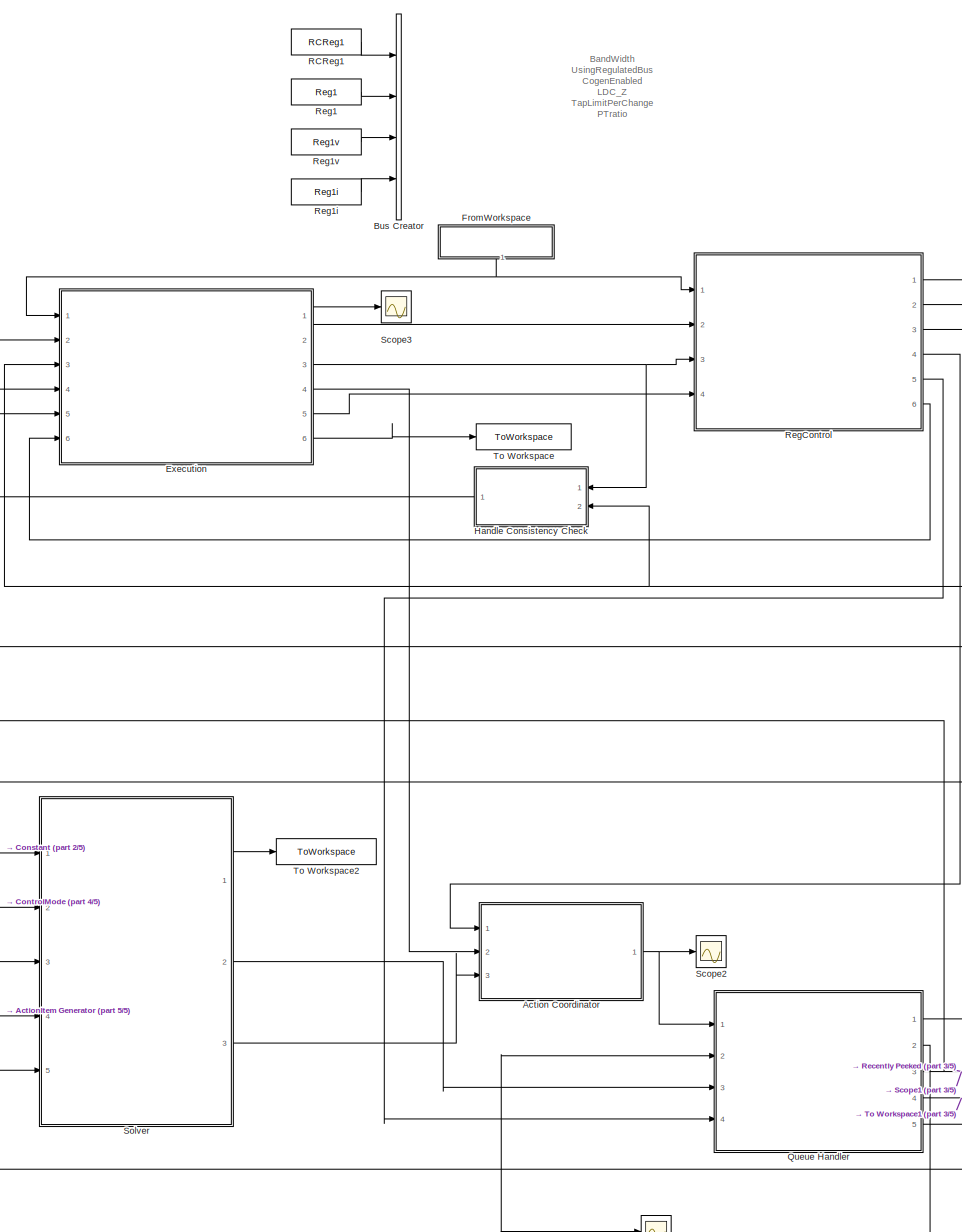
[diagram: root canvas - part 1/5, center side, full height]
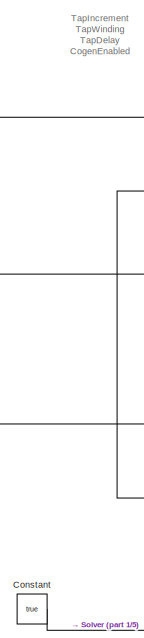
[diagram: root canvas - part 2/5, middle left region]
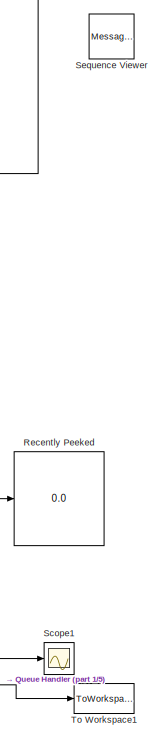
[diagram: root canvas - part 3/5, middle right region]
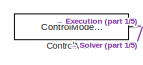
[diagram: root canvas - part 4/5, middle left region]
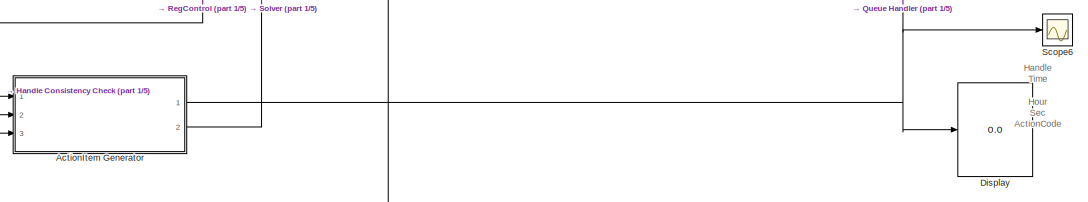
[diagram: root canvas - part 5/5, bottom center region]
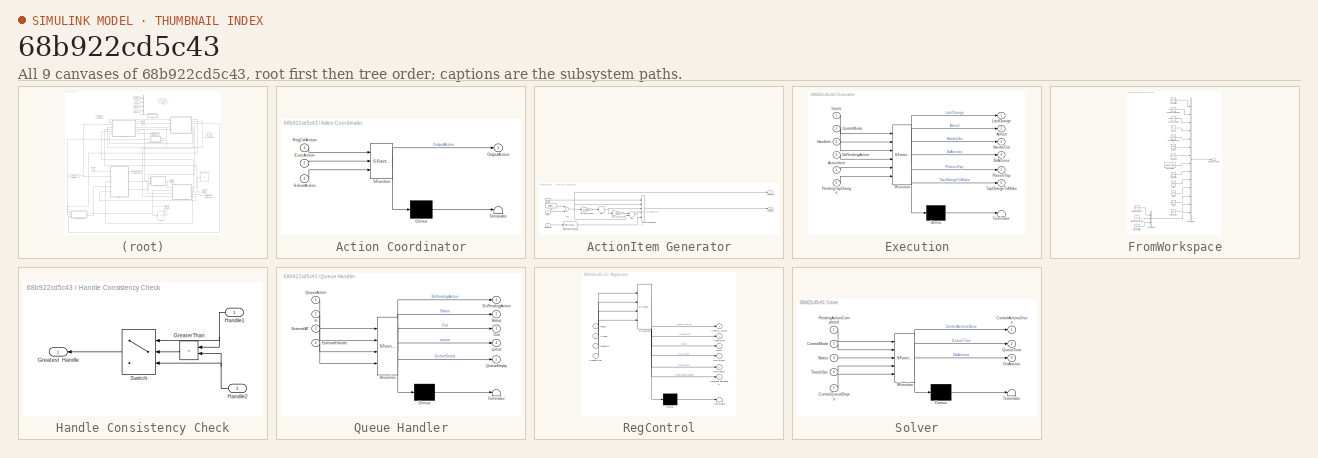
[diagram: thumbnail index - all 9 canvases of the model, root first then tree order]
MODEL slx_68b922cd5c43
KIND model
CONFIG AbsTol = auto
CONFIG EnableMultiTasking = off
CONFIG FixedStep = auto
CONFIG MaxStep = auto
CONFIG MinStep = auto
CONFIG RelTol = 1e-3
CONFIG SampleTimeConstraint = Unconstrained
CONFIG Solver = VariableStepAuto
CONFIG SolverName = VariableStepAuto
CONFIG StartTime = 0.0
CONFIG StopTime = 10.0
BLOCK [SubSystem] Action Coordinator
  ErrorFcn = Stateflow.Translate.translate
  PermitHierarchicalResolution = ExplicitOnly
  Ports = [3, 1]
  RequestExecContextInheritance = off
  SFBlockType = Chart
  TreatAsAtomicUnit = on
BLOCK [Demux] Action Coordinator/ Demux 
  Outputs = 1
  Ports = [1, 1]
BLOCK [S-Function] Action Coordinator/ SFunction 
  EnableBusSupport = off
  FunctionName = sf_sfun
  PortCounts = [3 2]
  Ports = [3, 2]
  SFcnIsStateOwnerBlock = off
  SFunctionDeploymentMode = off
  Tag = Stateflow S-Function regcontrol_model_before925 4
BLOCK [Terminator] Action Coordinator/ Terminator 
BLOCK [Inport] Action Coordinator/ExecAction
  IconDisplay = Port number
  Port = 2
BLOCK [Outport] Action Coordinator/OutputAction
  IconDisplay = Port number
BLOCK [Inport] Action Coordinator/RegCtrlAction
  IconDisplay = Port number
BLOCK [Inport] Action Coordinator/SolverAction
  IconDisplay = Port number
  Port = 3
BLOCK [SubSystem] ActionItem Generator
  Ports = [3, 2]
  RequestExecContextInheritance = off
BLOCK [Inport] ActionItem Generator/ActionCode
  IconDisplay = Port number
  Port = 2
BLOCK [DataTypeConversion] ActionItem Generator/ActionCodesToDouble
  OutDataTypeStr = double
  RndMeth = Floor
  SaturateOnIntegerOverflow = off
BLOCK [Outport] ActionItem Generator/ActionItem
  IconDisplay = Port number
BLOCK [Sum] ActionItem Generator/Add
  InputSameDT = off
  OutDataTypeStr = Inherit: Inherit via internal rule
  Ports = [2, 1]
  SaturateOnIntegerOverflow = off
BLOCK [Inport] ActionItem Generator/Delay
  IconDisplay = Port number
  Port = 3
BLOCK [Inport] ActionItem Generator/Handle
  IconDisplay = Port number
BLOCK [Rounding] ActionItem Generator/Hour
BLOCK [Gain] ActionItem Generator/HoursToSeconds
  Gain = 3600
  OutDataTypeStr = Inherit: Inherit via internal rule
  ParamDataTypeStr = Inherit: Inherit via internal rule
  SaturateOnIntegerOverflow = off
BLOCK [Sum] ActionItem Generator/Sec
  InputSameDT = off
  Inputs = -+
  OutDataTypeStr = Inherit: Inherit via internal rule
  Ports = [2, 1]
  SaturateOnIntegerOverflow = off
BLOCK [Gain] ActionItem Generator/SecondsToHours
  Gain = 1/3600
  OutDataTypeStr = Inherit: Inherit via internal rule
  ParamDataTypeStr = Inherit: Inherit via internal rule
  SaturateOnIntegerOverflow = off
BLOCK [DigitalClock] ActionItem Generator/Time
BLOCK [Outport] ActionItem Generator/TimeInSec
  IconDisplay = Port number
  Port = 2
BLOCK [Concatenate] ActionItem Generator/Vector Concatenate1
  NumInputs = 5
  Ports = [5, 1]
BLOCK [BusCreator] Bus Creator
  DisplayOption = bar
  InheritFromInputs = on
  Inputs = 4
  Ports = [4, 1]
BLOCK [Constant] Constant
  OutDataTypeStr = boolean
  Value = true
BLOCK [Constant] ControlMode
  OutDataTypeStr = Enum: ControlModes
  Value = ControlModes.STATIC
BLOCK [Display] Display
  Decimation = 1
  Ports = [1]
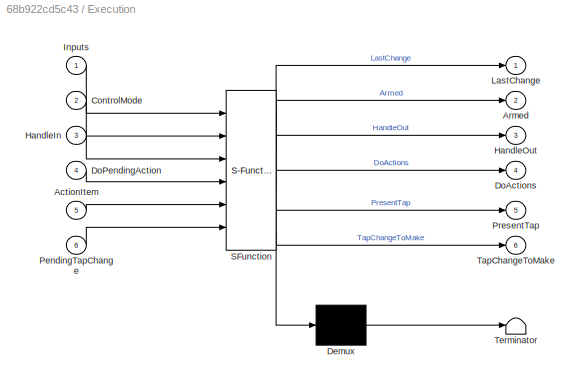
BLOCK [SubSystem] Execution
  ErrorFcn = Stateflow.Translate.translate
  PermitHierarchicalResolution = ExplicitOnly
  Ports = [6, 6]
  RequestExecContextInheritance = off
  SFBlockType = Chart
  TreatAsAtomicUnit = on
BLOCK [Demux] Execution/ Demux 
  Outputs = 1
  Ports = [1, 1]
BLOCK [S-Function] Execution/ SFunction 
  EnableBusSupport = on
  FunctionName = sf_sfun
  Parameters = 0,false
  PortCounts = [6 7]
  Ports = [6, 7]
  SFcnIsStateOwnerBlock = off
  SFunctionDeploymentMode = off
  Tag = Stateflow S-Function regcontrol_model_before925 1
BLOCK [Terminator] Execution/ Terminator 
BLOCK [Inport] Execution/ActionItem
  IconDisplay = Port number
  Port = 5
BLOCK [Outport] Execution/Armed
  IconDisplay = Port number
  Port = 2
BLOCK [Inport] Execution/ControlMode
  IconDisplay = Port number
  Port = 2
BLOCK [Outport] Execution/DoActions
  IconDisplay = Port number
  Port = 4
BLOCK [Inport] Execution/DoPendingAction
  IconDisplay = Port number
  Port = 4
BLOCK [Inport] Execution/HandleIn
  IconDisplay = Port number
  Port = 3
BLOCK [Outport] Execution/HandleOut
  IconDisplay = Port number
  Port = 3
BLOCK [Inport] Execution/Inputs
  IconDisplay = Port number
BLOCK [Outport] Execution/LastChange
  IconDisplay = Port number
BLOCK [Inport] Execution/PendingTapChange
  IconDisplay = Port number
  Port = 6
BLOCK [Outport] Execution/PresentTap
  IconDisplay = Port number
  Port = 5
BLOCK [Outport] Execution/TapChangeToMake
  IconDisplay = Port number
  Port = 6
BLOCK [SubSystem] FromWorkspace
  Ports = [0, 1]
  RequestExecContextInheritance = off
BLOCK [Constant] FromWorkspace/BandWidth
  Value = BandWidth
BLOCK [Constant] FromWorkspace/BaseVoltage
  Value = Vreg
BLOCK [BusCreator] FromWorkspace/Bus Creator
  DisplayOption = bar
  InheritFromInputs = on
  Inputs = 14
  OutDataTypeStr = Bus: InputsBus
  Ports = [14, 1]
BLOCK [BusCreator] FromWorkspace/Bus Creator1
  DisplayOption = bar
  InheritFromInputs = on
  Inputs = 3
  OutDataTypeStr = Bus: ControlledTransformer
  Ports = [3, 1]
BLOCK [Constant] FromWorkspace/CogenEnabled
  Value = CogenEnabled
BLOCK [Reference] FromWorkspace/FwdPower  REF=simulink/Sources/Waveform
Generator
  Ports = [0, 1]
  SourceBlock = simulink/Sources/Waveform\nGenerator
  SourceProductBaseCode = SL
  SourceProductName = Simulink
  SourceType = WaveformGenerator
BLOCK [Reference] FromWorkspace/ILDC  REF=simulink/Sources/Waveform
Generator
  Ports = [0, 1]
  SourceBlock = simulink/Sources/Waveform\nGenerator
  SourceProductBaseCode = SL
  SourceProductName = Simulink
  SourceType = WaveformGenerator
BLOCK [Constant] FromWorkspace/IsReversible
  Value = IsReversible
BLOCK [Constant] FromWorkspace/LDC_Z
  Value = LDC_Z
BLOCK [Constant] FromWorkspace/PTratio
  Value = PTratio
BLOCK [Constant] FromWorkspace/RevBand
  Value = RevBand
BLOCK [Constant] FromWorkspace/RevVreg
  Value = RevVreg
BLOCK [Constant] FromWorkspace/TapLimitPerChange
  Value = TapLimitPerChange
BLOCK [Constant] FromWorkspace/UsingRegulatedBus
  Value = UsingRegulatedBus
BLOCK [Constant] FromWorkspace/Vlimit
  Value = Vlimit
BLOCK [Constant] FromWorkspace/Vreg
  Value = Vreg
BLOCK [Constant] FromWorkspace/WindingConnections
  Value = Vreg
BLOCK [Reference] FromWorkspace/WindingVoltages  REF=simulink/Sources/Waveform
Generator
  Ports = [0, 1]
  SourceBlock = simulink/Sources/Waveform\nGenerator
  SourceProductBaseCode = SL
  SourceProductName = Simulink
  SourceType = WaveformGenerator
BLOCK [Outport] FromWorkspace/Workspace Data
  IconDisplay = Port number
BLOCK [SubSystem] Handle Consistency Check
  Ports = [2, 1]
  RequestExecContextInheritance = off
BLOCK [RelationalOperator] Handle Consistency Check/GreaterThan
  InputSameDT = off
  Operator = >
  Ports = [2, 1]
  RndMeth = Simplest
BLOCK [Outport] Handle Consistency Check/Greatest Handle
  IconDisplay = Port number
BLOCK [Inport] Handle Consistency Check/Handle1
  IconDisplay = Port number
BLOCK [Inport] Handle Consistency Check/Handle2
  IconDisplay = Port number
  Port = 2
BLOCK [Switch] Handle Consistency Check/Switch
  Criteria = u2 ~= 0
  InputSameDT = off
  SaturateOnIntegerOverflow = off
BLOCK [SubSystem] Queue Handler
  ErrorFcn = Stateflow.Translate.translate
  PermitHierarchicalResolution = ExplicitOnly
  Ports = [4, 5]
  RequestExecContextInheritance = off
  SFBlockType = Chart
  TreatAsAtomicUnit = on
BLOCK [Demux] Queue Handler/ Demux 
  Outputs = 1
  Ports = [1, 1]
BLOCK [S-Function] Queue Handler/ SFunction 
  EnableBusSupport = on
  FunctionName = sf_sfun
  InputPortMessageModes = m,n,n,n
  OutputPortMessageModes = n,m,n,n,n,n
  Parameters = 0,1,2,3,4,5,false,false;,true
  PortCounts = [4 6]
  Ports = [4, 6]
  SFcnIsStateOwnerBlock = off
  SFunctionDeploymentMode = off
  Tag = Stateflow S-Function regcontrol_model_before925 5
BLOCK [Terminator] Queue Handler/ Terminator 
BLOCK [Outport] Queue Handler/DoPendingAction
  IconDisplay = Port number
BLOCK [Inport] Queue Handler/ExternalAT
  IconDisplay = Port number
  Port = 3
BLOCK [Inport] Queue Handler/ExternalHandle
  IconDisplay = Port number
  Port = 4
BLOCK [Inport] Queue Handler/In
  IconDisplay = Port number
  Port = 2
BLOCK [Outport] Queue Handler/Out
  IconDisplay = Port number
  Port = 3
BLOCK [Inport] Queue Handler/QueueAction
  IconDisplay = Port number
BLOCK [Outport] Queue Handler/QueueEmpty
  IconDisplay = Port number
  Port = 5
BLOCK [Outport] Queue Handler/Status
  IconDisplay = Port number
  Port = 2
BLOCK [Outport] Queue Handler/queue
  IconDisplay = Port number
  Port = 4
BLOCK [Constant] RCReg1
  Value = RCReg1
BLOCK [Display] Recently Peeked
  Decimation = 1
  Ports = [1]
BLOCK [Constant] Reg1
  Value = Reg1
BLOCK [Constant] Reg1i
  Value = Reg1i
BLOCK [Constant] Reg1v
  Value = Reg1v
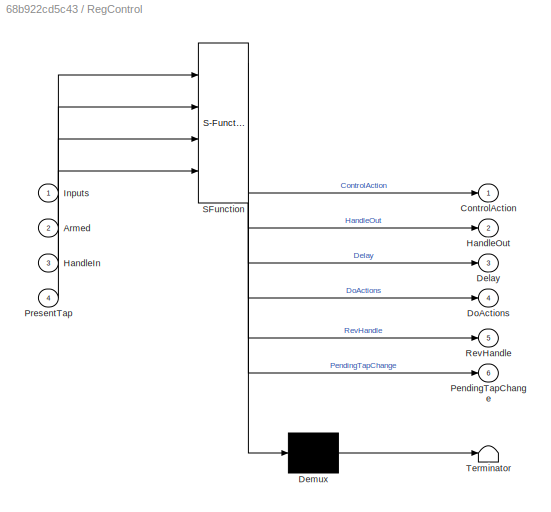
BLOCK [SubSystem] RegControl
  ErrorFcn = Stateflow.Translate.translate
  PermitHierarchicalResolution = ExplicitOnly
  Ports = [4, 6]
  RequestExecContextInheritance = off
  SFBlockType = Chart
  ShowPortLabels = SignalName
  TreatAsAtomicUnit = on
BLOCK [Demux] RegControl/ Demux 
  Outputs = 1
  Ports = [1, 1]
BLOCK [S-Function] RegControl/ SFunction 
  EnableBusSupport = on
  FunctionName = sf_sfun
  Parameters = 0,1,1.0e-12,120,16,3,60,BaseVoltage,false
  PortCounts = [4 7]
  Ports = [4, 7]
  SFcnIsStateOwnerBlock = off
  SFunctionDeploymentMode = off
  Tag = Stateflow S-Function regcontrol_model_before925 3
BLOCK [Terminator] RegControl/ Terminator 
BLOCK [Inport] RegControl/Armed
  IconDisplay = Port number
  Port = 2
BLOCK [Outport] RegControl/ControlAction
  IconDisplay = Port number
BLOCK [Outport] RegControl/Delay
  IconDisplay = Port number
  Port = 3
BLOCK [Outport] RegControl/DoActions
  IconDisplay = Port number
  Port = 4
BLOCK [Inport] RegControl/HandleIn
  IconDisplay = Port number
  Port = 3
BLOCK [Outport] RegControl/HandleOut
  IconDisplay = Port number
  Port = 2
BLOCK [Inport] RegControl/Inputs
  IconDisplay = Port number
BLOCK [Outport] RegControl/PendingTapChange
  IconDisplay = Port number
  Port = 6
BLOCK [Inport] RegControl/PresentTap
  IconDisplay = Port number
  Port = 4
BLOCK [Outport] RegControl/RevHandle
  IconDisplay = Port number
  Port = 5
BLOCK [Scope] Scope1
  Floating = off
  NumInputPorts = 1
  Ports = [1]
  ScopeSpecificationString = Simulink.scopes.TimeScopeBlockCfg('CurrentConfiguration', extmgr.ConfigurationSet(extmgr.Configuration('Core','General UI',true),extmgr.Configuration('Core','Source UI',true),extmgr.Configuration('Sources','WiredSimulink',true,'DataLoggingVariableName','ScopeData1'),extmgr.Configuration('Visuals','Time Domain',true,'SerializedDisplays',{struct('MinYLimReal','-0.5','MaxYLimReal','4.5','YLabelReal',...<+1470ch>
BLOCK [Scope] Scope2
  Floating = off
  NumInputPorts = 1
  Ports = [1]
  ScopeSpecificationString = Simulink.scopes.TimeScopeBlockCfg('CurrentConfiguration', extmgr.ConfigurationSet(extmgr.Configuration('Core','General UI',true),extmgr.Configuration('Core','Source UI',true),extmgr.Configuration('Sources','WiredSimulink',true,'DataLoggingVariableName','ScopeData2'),extmgr.Configuration('Visuals','Time Domain',true,'SerializedDisplays',{struct('MinYLimReal','-0.75','MaxYLimReal','6.75','YLabelReal...<+1414ch>
BLOCK [Scope] Scope3
  Floating = off
  NumInputPorts = 1
  Ports = [1]
  ScopeSpecificationString = Simulink.scopes.TimeScopeBlockCfg('CurrentConfiguration', extmgr.ConfigurationSet(extmgr.Configuration('Core','General UI',true),extmgr.Configuration('Core','Source UI',true),extmgr.Configuration('Sources','WiredSimulink',true,'DataLoggingVariableName','ScopeData1'),extmgr.Configuration('Visuals','Time Domain',true,'SerializedDisplays',{struct('MinYLimReal','-0.75','MaxYLimReal','6.75','YLabelReal...<+1414ch>
BLOCK [Scope] Scope6
  Floating = off
  NumInputPorts = 1
  Ports = [1]
  ScopeSpecificationString = Simulink.scopes.TimeScopeBlockCfg('CurrentConfiguration', extmgr.ConfigurationSet(extmgr.Configuration('Core','General UI',true),extmgr.Configuration('Core','Source UI',true),extmgr.Configuration('Sources','WiredSimulink',true,'DataLoggingVariableName','ScopeData3'),extmgr.Configuration('Visuals','Time Domain',true,'SerializedDisplays',{struct('MinYLimReal','-1.25','MaxYLimReal','11.25','YLabelRea...<+1418ch>
BLOCK [MessageViewer] Sequence Viewer
BLOCK [SubSystem] Solver
  ErrorFcn = Stateflow.Translate.translate
  PermitHierarchicalResolution = ExplicitOnly
  Ports = [5, 3]
  RequestExecContextInheritance = off
  SFBlockType = Chart
  TreatAsAtomicUnit = on
BLOCK [Demux] Solver/ Demux 
  Outputs = 1
  Ports = [1, 1]
BLOCK [S-Function] Solver/ SFunction 
  EnableBusSupport = on
  FunctionName = sf_sfun
  InputPortMessageModes = n,n,n,m,n
  OutputPortMessageModes = n,n,n,m
  Parameters = false
  PortCounts = [5 4]
  Ports = [5, 4]
  SFcnIsStateOwnerBlock = off
  SFunctionDeploymentMode = off
  Tag = Stateflow S-Function regcontrol_model_before925 2
BLOCK [Terminator] Solver/ Terminator 
BLOCK [Outport] Solver/ControlActionsDone
  IconDisplay = Port number
BLOCK [Inport] Solver/ControlMode
  IconDisplay = Port number
  Port = 2
BLOCK [Inport] Solver/ControlQueueEmpty
  IconDisplay = Port number
  Port = 5
BLOCK [Outport] Solver/DoActions
  IconDisplay = Port number
  Port = 3
BLOCK [Inport] Solver/PendingActionCompleted
  IconDisplay = Port number
BLOCK [Outport] Solver/QueueTime
  IconDisplay = Port number
  Port = 2
BLOCK [Inport] Solver/Status
  IconDisplay = Port number
  Port = 3
BLOCK [Inport] Solver/TimeInSec
  IconDisplay = Port number
  Port = 4
BLOCK [ToWorkspace] To Workspace
  FixptAsFi = on
  MaxDataPoints = inf
  Ports = [1]
  SampleTime = -1
  Save2DSignal = 3-D array (concatenate along third dimension)
  SaveFormat = Timeseries
  VariableName = TapChangeToMake
BLOCK [ToWorkspace] To Workspace1
  FixptAsFi = on
  MaxDataPoints = inf
  Ports = [1]
  SampleTime = -1
  Save2DSignal = 3-D array (concatenate along third dimension)
  SaveFormat = Structure With Time
  VariableName = queueAtTime
BLOCK [ToWorkspace] To Workspace2
  FixptAsFi = on
  MaxDataPoints = inf
  Ports = [1]
  SampleTime = -1
  Save2DSignal = 3-D array (concatenate along third dimension)
  SaveFormat = Timeseries
  VariableName = ControlActionsDone
ANNOTATION (root): BandWidth UsingRegulatedBus CogenEnabled LDC_Z TapLimitPerChange PTratio RevBand IsReversible RevVreg Vlimit Vreg ILDC FwdPower
ANNOTATION (root): Handle Time Hour Sec ActionCode
ANNOTATION (root): TapIncrement TapWinding TapDelay CogenEnabled
ANNOTATION ActionItem Generator: [Handle Time Hour Sec ActionCode]'
NET Action Coordinator:1 -> Queue Handler:1, Scope2:1
LINE ActionItem Generator/ActionCode:1 -> ActionItem Generator/ActionCodesToDouble:1
LINE ActionItem Generator/ActionCodesToDouble:1 -> ActionItem Generator/Vector Concatenate1:5
NET ActionItem Generator/Add:1 -> ActionItem Generator/Sec:2, ActionItem Generator/SecondsToHours:1, ActionItem Generator/TimeInSec:1, ActionItem Generator/Vector Concatenate1:2
LINE ActionItem Generator/Delay:1 -> ActionItem Generator/Add:2
LINE ActionItem Generator/Handle:1 -> ActionItem Generator/Vector Concatenate1:1
NET ActionItem Generator/Hour:1 -> ActionItem Generator/HoursToSeconds:1, ActionItem Generator/Vector Concatenate1:3
LINE ActionItem Generator/HoursToSeconds:1 -> ActionItem Generator/Sec:1
LINE ActionItem Generator/Sec:1 -> ActionItem Generator/Vector Concatenate1:4
LINE ActionItem Generator/SecondsToHours:1 -> ActionItem Generator/Hour:1
LINE ActionItem Generator/Time:1 -> ActionItem Generator/Add:1
LINE ActionItem Generator/Vector Concatenate1:1 -> ActionItem Generator/ActionItem:1
NET ActionItem Generator:1 -> Display:1, Queue Handler:2, Scope6:1
LINE ActionItem Generator:2 -> Solver:4
LINE Constant:1 -> Solver:1
NET ControlMode:1 -> Execution:2, Solver:2
LINE Execution:1 -> Scope3:1
LINE Execution:2 -> RegControl:2
NET Execution:3 -> Handle Consistency Check:1, RegControl:3
LINE Execution:4 -> Action Coordinator:2
LINE Execution:5 -> RegControl:4
LINE Execution:6 -> To Workspace:1
LINE FromWorkspace/BandWidth:1 -> FromWorkspace/Bus Creator:1
LINE FromWorkspace/BaseVoltage:1 -> FromWorkspace/Bus Creator1:3
LINE FromWorkspace/Bus Creator1:1 -> FromWorkspace/Bus Creator:14
LINE FromWorkspace/Bus Creator:1 -> FromWorkspace/Workspace Data:1
LINE FromWorkspace/CogenEnabled:1 -> FromWorkspace/Bus Creator:3
LINE FromWorkspace/FwdPower:1 -> FromWorkspace/Bus Creator:13
LINE FromWorkspace/ILDC:1 -> FromWorkspace/Bus Creator:12
LINE FromWorkspace/IsReversible:1 -> FromWorkspace/Bus Creator:8
LINE FromWorkspace/LDC_Z:1 -> FromWorkspace/Bus Creator:4
LINE FromWorkspace/PTratio:1 -> FromWorkspace/Bus Creator:6
LINE FromWorkspace/RevBand:1 -> FromWorkspace/Bus Creator:7
LINE FromWorkspace/RevVreg:1 -> FromWorkspace/Bus Creator:9
LINE FromWorkspace/TapLimitPerChange:1 -> FromWorkspace/Bus Creator:5
LINE FromWorkspace/UsingRegulatedBus:1 -> FromWorkspace/Bus Creator:2
LINE FromWorkspace/Vlimit:1 -> FromWorkspace/Bus Creator:10
LINE FromWorkspace/Vreg:1 -> FromWorkspace/Bus Creator:11
LINE FromWorkspace/WindingConnections:1 -> FromWorkspace/Bus Creator1:2
LINE FromWorkspace/WindingVoltages:1 -> FromWorkspace/Bus Creator1:1
NET FromWorkspace:1 -> Execution:1, RegControl:1
LINE Handle Consistency Check/GreaterThan:1 -> Handle Consistency Check/Switch:2
NET Handle Consistency Check/Handle1:1 -> Handle Consistency Check/GreaterThan:1, Handle Consistency Check/Switch:1
NET Handle Consistency Check/Handle2:1 -> Handle Consistency Check/GreaterThan:2, Handle Consistency Check/Switch:3
LINE Handle Consistency Check/Switch:1 -> Handle Consistency Check/Greatest Handle:1
LINE Handle Consistency Check:1 -> ActionItem Generator:1
LINE Queue Handler:1 -> Execution:4
LINE Queue Handler:2 -> Solver:3
NET Queue Handler:3 -> Execution:5, Recently Peeked:1, Scope1:1
LINE Queue Handler:4 -> To Workspace1:1
LINE Queue Handler:5 -> Solver:5
LINE RCReg1:1 -> Bus Creator:1
LINE Reg1:1 -> Bus Creator:2
LINE Reg1i:1 -> Bus Creator:4
LINE Reg1v:1 -> Bus Creator:3
LINE RegControl:1 -> ActionItem Generator:2
NET RegControl:2 -> Execution:3, Handle Consistency Check:2
LINE RegControl:3 -> ActionItem Generator:3
LINE RegControl:4 -> Action Coordinator:1
LINE RegControl:5 -> Queue Handler:4
LINE RegControl:6 -> Execution:6
LINE Solver:1 -> To Workspace2:1
LINE Solver:2 -> Queue Handler:3
LINE Solver:3 -> Action Coordinator:3
note: NET lines group one-source signal fan-out (src -> all destinations, sorted); 1:1 wires keep LINE
CHART Execution states=19 transitions=112
  STATE_LABEL 'Push(CodeVal, DelayVal)'
  STATE_LABEL '{ActionCode = CodeVal;\nDelay = DelayVal;\nHandleOut = HandleOut + 1;\nDoActions.data = QueueActions.PUSH;\nsend(DoActions);}'
  STATE_LABEL 'ControlFlow'
  STATE_LABEL 'MakingTapChange'
  STATE_LABEL 'StaticTapChange'
  STATE_LABEL '{TapChangeToMake = AtLeastOneTap(PendingTapChange, TapIncrement(TapWinding));\n% reset to no change = change - 1 program will determin if another is needed:\nPendingTapChange = 0; \nArmed = false;}'
  STATE_LABEL 'EventDrivenTapChange'
  STATE_LABEL '{[TapChangeToMake LocalPendingTapChange] =...\n OneInDirectionOf(LocalPendingTapChange, TapIncrement(TapWinding));\nPresentTap(TapWinding) = PresentTap(TapWinding) + TapChangeToMake;}'
  STATE_LABEL '[PendingTapChange ~= 0]'
  STATE_LABEL '{Armed = false;}'
  STATE_LABEL '{Push(ActionCodes.ACTION_TAPCHANGE, TapDelay);}'
  STATE_LABEL 'TimeDrivenTapChange'
  STATE_LABEL '{[TapChangeToMake LocalPendingTapChange] =...\n OneInDirectionOf(LocalPendingTapChange, TapIncrement(TapWinding));\nPresentTap(TapWinding) = PresentTap(TapWinding) + TapChangeToMake;}'
  STATE_LABEL '[PendingTapChange ~= 0]'
  STATE_LABEL '{Armed = false;}'
  STATE_LABEL '{Push(ActionCodes.ACTION_TAPCHANGE, TapDelay);}'
  STATE_LABEL 'MultiRateTapChange'
  STATE_LABEL '{[TapChangeToMake, LocalPendingTapChange] =...\n OneInDirectionOf(LocalPendingTapChange, TapIncrement(TapWinding));\nPresentTap(TapWinding) = PresentTap(TapWinding) + TapChangeToMake;}'
  STATE_LABEL '[PendingTapChange ~= 0]'
  STATE_LABEL '{Armed = false;}'
  STATE_LABEL '{Push(ActionCodes.ACTION_TAPCHANGE, TapDelay);}'
  STATE_LABEL 'Finished\nen: EXIT_TAPCHANGE = true;'
  STATE_LABEL '% Check to make sure control has not reset:\n[PendingTapChange == 0]'
  STATE_LABEL '{Armed = false;}'
  STATE_LABEL '[ControlMode == ControlModes.STATIC]'
  STATE_LABEL '[ControlMode == ControlModes.EVENTDRIVEN]'
  STATE_LABEL '[ControlMode == ControlModes.TIMEDRIVEN]'
  STATE_LABEL '[ControlMode == ControlModes.MULTIRATE]'
  STATE_LABEL 'Reversing'
  STATE_LABEL 'FlipCogen'
  STATE_LABEL '[InCogenMode]'
  STATE_LABEL '{InCogenMode = true;}'
  STATE_LABEL '{InCogenMode = false;}'
  STATE_LABEL 'FlipReverse'
  STATE_LABEL '[InReverseMode]'
  STATE_LABEL '{InReverseMode = true;}'
  STATE_LABEL '{InReverseMode = false;}'
  STATE_LABEL 'Finished\nen: EXIT_REVERSE = true;'
  STATE_LABEL '[ReversePending]'
  STATE_LABEL '[CogenEnabled]'
CHART Solver states=6 transitions=46
  STATE_LABEL 'ControlFlow'
  STATE_LABEL '<!DOCTYPE HTML PUBLIC "-//W3C//DTD HTML 4.0//EN" "http://www.w3.org/TR/REC-html40/strict.dtd">\n<html><head><meta name="qrichtext" content="1" /><style type="text/css">\np, li { white-space: pre-wrap; }\n</style></head><body style=" font-family:\'Helvetica\'; font-size:12px; font-weight:400; font-style:normal;">\n<p style=" margin-top:0px; margin-bottom:0px; margin-left:0px; margin-right:0px; -qt-block-...<+551ch>'
  STATE_LABEL '<!DOCTYPE HTML PUBLIC "-//W3C//DTD HTML 4.0//EN" "http://www.w3.org/TR/REC-html40/strict.dtd">\n<html><head><meta name="qrichtext" content="1" /><style type="text/css">\np, li { white-space: pre-wrap; }\n</style></head><body style=" font-family:\'Helvetica\'; font-size:12px; font-weight:400; font-style:normal;">\n<p style=" margin-top:0px; margin-bottom:0px; margin-left:0px; margin-right:0px; -qt-block-...<+561ch>'
  STATE_LABEL '<!DOCTYPE HTML PUBLIC "-//W3C//DTD HTML 4.0//EN" "http://www.w3.org/TR/REC-html40/strict.dtd">\n<html><head><meta name="qrichtext" content="1" /><style type="text/css">\np, li { white-space: pre-wrap; }\n</style></head><body style=" font-family:\'Helvetica\'; font-size:12px; font-weight:400; font-style:normal;">\n<p style=" margin-top:0px; margin-bottom:0px; margin-left:0px; margin-right:0px; -qt-block-...<+553ch>'  <repeated x4 — deduplicated; at blocks: Solver>
  STATE_LABEL '[ControlMode == ControlModes.STATIC]'
  STATE_LABEL '[LocalControlQueueEmpty]\n% execute nearest set of control actions, but leave time where it is'
  STATE_LABEL '{QueueTime = 0; %[0 0] xHour, xSec\nDoActions.data = QueueActions.DO_NEAREST_ACTIONS;\nsend(DoActions);\n% ignores time advancement\n}'
  STATE_LABEL '{ControlActionsDone = true;}'
  STATE_LABEL '[ControlMode == ControlModes.EVENTDRIVEN]\n% execute nearest set of control actions and advance time to that time'
  STATE_LABEL '{QueueTime = TimeInSec; %xHour, xSec\nDoActions.data = QueueActions.DO_NEAREST_ACTIONS;\nsend(DoActions);}'
  STATE_LABEL '[~PendingActionCompleted]'
  STATE_LABEL '{ControlActionsDone = true;\n% advances time to the next event\n}'
  STATE_LABEL '[ControlMode == ControlModes.TIMEDRIVEN]\n % Do all actions having and action time <= specified time'
  STATE_LABEL '{QueueTime = TimeInSec; %xHour, xSec\nDoActions.data = QueueActions.DO_ACTIONS;\nsend(DoActions);}'
  STATE_LABEL '[~PendingActionCompleted]'
  STATE_LABEL '{ControlActionsDone = true;\n}'
  STATE_LABEL '[ControlMode == ControlModes.MULTIRATE]\n % Execute the nearest set of control actions, but leave time where it is'
  STATE_LABEL '{QueueTime =TimeInSec; %xHour, xSec\nDoActions.data = QueueActions.DO_MULTIRATE;\nsend(DoActions);}'
  STATE_LABEL '[~PendingActionCompleted]'
  STATE_LABEL '{ControlActionsDone = true;\n}'
  STATE_LABEL '<!DOCTYPE HTML PUBLIC "-//W3C//DTD HTML 4.0//EN" "http://www.w3.org/TR/REC-html40/strict.dtd">\n<html><head><meta name="qrichtext" content="1" /><style type="text/css">\np, li { white-space: pre-wrap; }\n</style></head><body style=" font-family:\'Helvetica\'; font-size:12px; font-weight:400; font-style:normal;">\n<p style=" margin-top:0px; margin-bottom:0px; margin-left:0px; margin-right:0px; -qt-block-...<+551ch>'
  STATE_LABEL '<!DOCTYPE HTML PUBLIC "-//W3C//DTD HTML 4.0//EN" "http://www.w3.org/TR/REC-html40/strict.dtd">\n<html><head><meta name="qrichtext" content="1" /><style type="text/css">\np, li { white-space: pre-wrap; }\n</style></head><body style=" font-family:\'Helvetica\'; font-size:12px; font-weight:400; font-style:normal;">\n<p style=" margin-top:0px; margin-bottom:0px; margin-left:0px; margin-right:0px; -qt-block-...<+561ch>'
  STATE_LABEL 'QueueEmptyCase\nen: LocalControlQueueEmpty = true;'
CHART RegControl states=44 transitions=247
  STATE_LABEL 'ControlFlow'
  STATE_LABEL 'DetermineReversePendingLookingForward'
  STATE_LABEL 'CorrectFalseReversePending'
  STATE_LABEL '[FwdPower < (-1*RevPowerThreshold)]'
  STATE_LABEL '{ReversePending = true;\nRevHandle = ...\nPush(ActionCodes.ACTION_REVERSE, ...\nRevDelay);\n}'
  STATE_LABEL 'CorrectTrueReversePending'
  STATE_LABEL '[FwdPower >= (-1*RevPowerThreshold)]'
  STATE_LABEL '% Reset ReversePending:\n% Delete RevHandle from ControlQueue\n{DoActions.data = QueueActions.DELETE;\nsend(DoActions);\nReversePending = false;\nRevHandle = 0;}'
  STATE_LABEL 'Finished\nen: GET_VOLTAGE = true;'
  STATE_LABEL '{%FwdPower = -1*real( ControlledTransformer.Power(ElementTerminal) );\nFwdPower = -1*real( ControlledTransformerPower );}\n% Should we reverse?'
  STATE_LABEL '[~ReversePending]'
  STATE_LABEL '[ReversePending]'
  STATE_LABEL 'DetermineReversePendingLookingReverseOrCogen'
  STATE_LABEL 'CorrectFalseReversePending'
  STATE_LABEL '[FwdPower > RevPowerThreshold]'
  STATE_LABEL '{ReversePending = true;\nRevHandle = ...\nPush(ActionCodes.ACTION_REVERSE, ...\nRevDelay);\n}'
  STATE_LABEL 'CorrectTrueReversePending'
  STATE_LABEL '[FwdPower <= RevPowerThreshold]'
  STATE_LABEL '% Reset ReversePending:\n{ReversePending = false;}'
  STATE_LABEL 'Finished\nen: REV_NEUTRAL = true;'
  STATE_LABEL '{%%FwdPower = -1*real( ControlledTransformer.Power(ElementTerminal) );\nFwdPower = -1*real( ControlledTransformerPower );}\n% If reversed, check if power is back in forward direction'
  STATE_LABEL '[~ReversePending]'
  STATE_LABEL '[ReversePending]'
  STATE_LABEL 'ReverseNeutralCase'
  STATE_LABEL 'Finished\nsend(GET_VOLTAGE);'
  STATE_LABEL 'Exiting\nen: EXIT = true;'
  STATE_LABEL '% tap change not specified as needed:\n[~Armed]'
  STATE_LABEL '{PendingTapChange = 0.0;}'
  STATE_LABEL '[abs(PresentTap(TapWinding) - 1.0) < EPSILON]'
  STATE_LABEL '{Increment = TapIncrement(TapWinding);\nPendingTapChange = round( (1.0 - ...\nPresentTap(TapWinding)) / Increment ) * Increment;}'
  STATE_LABEL '[PendingTapChange ~= 0.0 && ~Armed]'
  STATE_LABEL '{% Push ACTION_TAPCHANGE\n% to ControlQueue with TapDelay:\nPush(ActionCodes.ACTION_TAPCHANGE, TapDelay);\nArmed = true;}'
  STATE_LABEL 'GetVoltage'
  STATE_LABEL 'Finished\nen: DETERMINE_VLOCALBUS = true;'
  STATE_LABEL '[UsingRegulatedBus]'
  STATE_LABEL '{VBuffer = ControlledTransformerWindingVoltages;\n%ControlledTransformer.GetWindingVoltages;\nVcontrol = GetControlVoltage;}'
  STATE_LABEL '{TransformerConnection = ControlledTransformerConnection;\n%TransformerConnection = ControlledTransformer.Winding(ElementTerminal).Connection;\nVterminal = ComputeVTerminal;}'
  STATE_LABEL 'DetermineVlocalbus'
  STATE_LABEL 'Finished\nen: GET_VOLTAGEWLDC = true;'
  STATE_LABEL '% Voltage limit for bus connected to regulated winding; default = 0.0 (inactive)\n[VlimitActive]'
CHART Action Coordinator states=4 transitions=7
  STATE_LABEL 'Asleep'
  STATE_LABEL 'SendingRegCtrlAction\nen:OutputAction.data = ...\n    RegCtrlAction.data;\nsend(OutputAction);'
  STATE_LABEL 'SendingSolverAction\nen:OutputAction.data = ...\n    SolverAction.data;\nsend(SolverAction);'
  STATE_LABEL 'SendingExecAction\nen:OutputAction.data = ...\n    ExecAction.data;\nsend(OutputAction);'
CHART Queue Handler states=27 transitions=98
  STATE_LABEL 'Executive'
  STATE_LABEL 'Asleep\nex: Status.data = Statuses.READY; % reset status\n INTERNAL_DONE = false;\n EXECUTIVE_DONE = false;'
  STATE_LABEL 'DoNearestActions'
  STATE_LABEL 'WaitOnPeek\nen: send(QUEUE_PEEK, Internal);'
  STATE_LABEL 'WaitOnPop\nen: send(QUEUE_POP, Internal);'
  STATE_LABEL 'ErrorNoItems\nen: Status.data = ...\n     Statuses.ERROR;\n send(Status);'
  STATE_LABEL '% do only those actions with the same delay time as the first action time return time\n{q_len_initial = GetQueueSize;\nPendingActionsCompleted = false; % local for now\n}'
  STATE_LABEL '[q_len_initial > 0]'
  STATE_LABEL '{INTERNAL_DONE = false;\nActionTime = ExternalAT; % peek with given AT\n}'
  STATE_LABEL '[jj <= q_len_initial]'
  STATE_LABEL '{INTERNAL_DONE = false;}'
  STATE_LABEL '[INTERNAL_DONE]\n{ActionTime = Out(QF.Time);\nQHour = Out(QF.Hour);\nQSec = Out(QF.Sec);\njj = 1;}'
  STATE_LABEL '[INTERNAL_DONE]\n%send(DoPendingAction);'
  STATE_LABEL '{jj = jj + 1;}'
  STATE_LABEL '{EXECUTIVE_DONE = true;}'
  STATE_LABEL 'DoAllActions'
  STATE_LABEL 'WaitOnPop\nen: send(QUEUE_POP, Internal);'
  STATE_LABEL 'ErrorNoItems\nen: Status.data = ...\n     Statuses.ERROR;\n send(Status);'
  STATE_LABEL '{q_len_initial = GetQueueSize;}'
  STATE_LABEL '[q_len_initial ~= 0]'
  STATE_LABEL '{ActionTime = ExternalAT;\njj = 1;}'
  STATE_LABEL '[jj <= q_len_initial]'
  STATE_LABEL '{INTERNAL_DONE = false;}'
  STATE_LABEL '{jj = jj + 1;}'
  STATE_LABEL '[INTERNAL_DONE]\n%send(DoPendingAction);'
  STATE_LABEL '{EXECUTIVE_DONE = true;}'
  STATE_LABEL 'Pushing\nen: send(QUEUE_PUSH, Internal);'
  STATE_LABEL 'DeletingByHandle\nen: send(QUEUE_DELETE, Internal);'
  STATE_LABEL 'Peeking\nen: send(QUEUE_PEEK, Internal);'
  STATE_LABEL 'Popping\nen: send(QUEUE_POP, Internal);'
  STATE_LABEL 'ReadyAgain\nStatus.data = Statuses.READY;\nsend(Status);'
  STATE_LABEL 'QueueAction[QueueAction.data == ...\nQueueActions.DELETE]'
  STATE_LABEL 'QueueAction[QueueAction.data == ...\nQueueActions.PEEK]'
  STATE_LABEL 'QueueAction[QueueAction.data == ...\nQueueActions.POP]'
  STATE_LABEL 'QueueAction[QueueAction.data == ...\nQueueActions.PUSH]'
  STATE_LABEL 'QueueAction[QueueAction.data == ...\nQueueActions.DO_ALL_ACTIONS]'
  STATE_LABEL 'QueueAction[QueueAction.data == DO_NEAREST_ACTIONS]'
  STATE_LABEL '[INTERNAL_DONE]'
  STATE_LABEL '[INTERNAL_DONE]'
  STATE_LABEL '[INTERNAL_DONE]'
